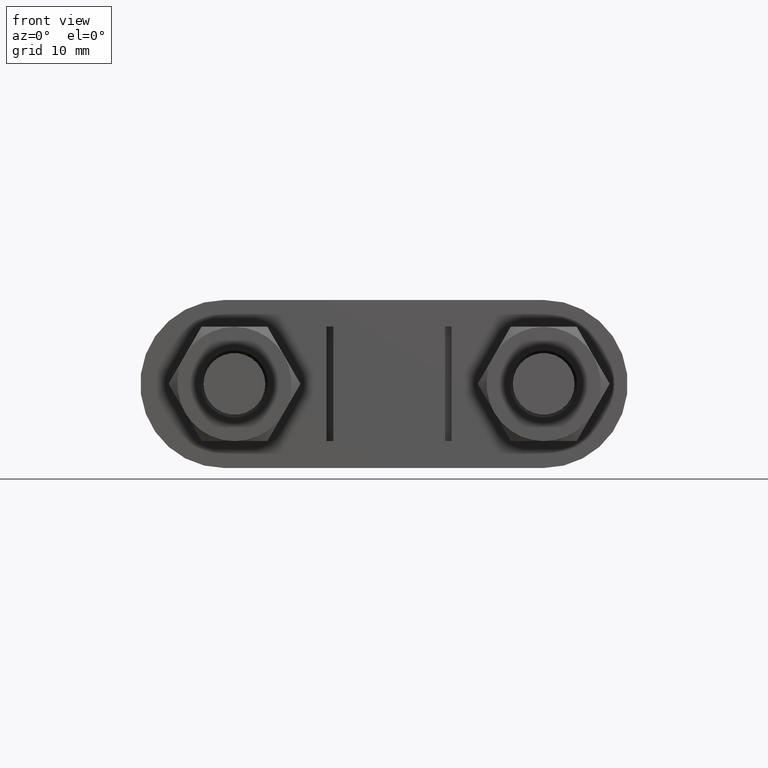
[diagram: clean part render]
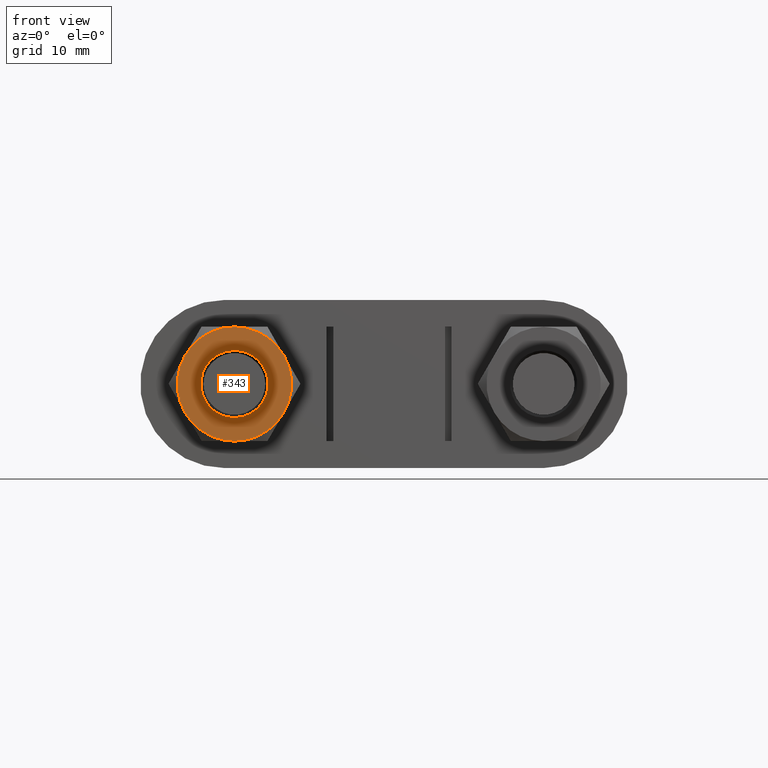
[diagram: same view with one face highlighted and labeled with its STEP entity id]
A machine part, front view. The second image highlights one B-rep face of the part: STEP entity #343.
In plain terms, the highlighted planar face has unit normal (0, 1, 0).
Its self-contained STEP definition (entity closure, byte-faithful):
#343 = ADVANCED_FACE( '', ( #554, #555 ), #556, .F. );
#554 = FACE_OUTER_BOUND( '', #1632, .T. );
#555 = FACE_BOUND( '', #1633, .T. );
#556 = PLANE( '', #1634 );
#1632 = EDGE_LOOP( '', ( #2257, #2258, #2259, #2260, #2261, #2262 ) );
#1633 = EDGE_LOOP( '', ( #2263 ) );
#1634 = AXIS2_PLACEMENT_3D( '', #2264, #2265, #2266 );
#2257 = ORIENTED_EDGE( '', *, *, #2681, .F. );
#2258 = ORIENTED_EDGE( '', *, *, #2686, .F. );
#2259 = ORIENTED_EDGE( '', *, *, #2662, .F. );
#2260 = ORIENTED_EDGE( '', *, *, #2678, .F. );
#2261 = ORIENTED_EDGE( '', *, *, #2649, .F. );
#2262 = ORIENTED_EDGE( '', *, *, #2687, .F. );
#2263 = ORIENTED_EDGE( '', *, *, #2688, .T. );
#2264 = CARTESIAN_POINT( '', ( -23.0000000000000, 18.0000000000003, 4.84692581209649E-015 ) );
#2265 = DIRECTION( '', ( 7.49830360911067E-032, 1.00000000000000, 3.06151588455594E-016 ) );
#2266 = DIRECTION( '', ( 1.00000000000000, -1.09476442525376E-047, -2.44921270764475E-016 ) );
#2649 = EDGE_CURVE( '', #2970, #2972, #2973, .T. );
#2662 = EDGE_CURVE( '', #2988, #2995, #2996, .T. );
#2678 = EDGE_CURVE( '', #2972, #2988, #3023, .T. );
#2681 = EDGE_CURVE( '', #3027, #3028, #3029, .T. );
#2686 = EDGE_CURVE( '', #2995, #3027, #3036, .T. );
#2687 = EDGE_CURVE( '', #3028, #2970, #3037, .T. );
#2688 = EDGE_CURVE( '', #3038, #3038, #3039, .T. );
#2970 = VERTEX_POINT( '', #3618 );
#2972 = VERTEX_POINT( '', #3625 );
#2973 = CIRCLE( '', #3626, 8.50000000000000 );
#2988 = VERTEX_POINT( '', #3650 );
#2995 = VERTEX_POINT( '', #3669 );
#2996 = CIRCLE( '', #3670, 8.50000000000000 );
#3023 = CIRCLE( '', #3709, 8.50000000000000 );
#3027 = VERTEX_POINT( '', #3718 );
#3028 = VERTEX_POINT( '', #3719 );
#3029 = CIRCLE( '', #3720, 8.50000000000000 );
#3036 = CIRCLE( '', #3738, 8.50000000000000 );
#3037 = CIRCLE( '', #3739, 8.50000000000000 );
#3038 = VERTEX_POINT( '', #3740 );
#3039 = CIRCLE( '', #3741, 5.00000000000000 );
#3618 = CARTESIAN_POINT( '', ( -22.9999999992900, 18.0000000000003, 8.50000000000001 ) );
#3625 = CARTESIAN_POINT( '', ( -15.6387840674773, 18.0000000000003, 4.24999999938521 ) );
#3626 = AXIS2_PLACEMENT_3D( '', #4118, #4119, #4120 );
#3650 = CARTESIAN_POINT( '', ( -15.6387840681875, 18.0000000000002, -4.25000000061489 ) );
#3669 = CARTESIAN_POINT( '', ( -23.0000000003550, 18.0000000000003, -8.50000000020496 ) );
#3670 = AXIS2_PLACEMENT_3D( '', #4136, #4137, #4138 );
#3709 = AXIS2_PLACEMENT_3D( '', #4167, #4168, #4169 );
#3718 = CARTESIAN_POINT( '', ( -30.3612159325226, 18.0000000000003, -4.24999999938518 ) );
#3719 = CARTESIAN_POINT( '', ( -30.3612159318125, 18.0000000000002, 4.25000000061490 ) );
#3720 = AXIS2_PLACEMENT_3D( '', #4173, #4174, #4175 );
#3738 = AXIS2_PLACEMENT_3D( '', #4180, #4181, #4182 );
#3739 = AXIS2_PLACEMENT_3D( '', #4183, #4184, #4185 );
#3740 = CARTESIAN_POINT( '', ( -23.0000000000000, 18.0000000000003, 5.00000000000001 ) );
#3741 = AXIS2_PLACEMENT_3D( '', #4186, #4187, #4188 );
#4118 = CARTESIAN_POINT( '', ( -23.0000000000000, 18.0000000000003, 4.84692581209649E-015 ) );
#4119 = DIRECTION( '', ( 7.49830360911067E-032, 1.00000000000000, 3.06151588455594E-016 ) );
#4120 = DIRECTION( '', ( 0.000000000000000, -3.06151588455594E-016, 1.00000000000000 ) );
#4136 = CARTESIAN_POINT( '', ( -23.0000000000000, 18.0000000000003, 4.84692581209649E-015 ) );
#4137 = DIRECTION( '', ( 7.49830360911067E-032, 1.00000000000000, 3.06151588455594E-016 ) );
#4138 = DIRECTION( '', ( 0.000000000000000, -3.06151588455594E-016, 1.00000000000000 ) );
#4167 = CARTESIAN_POINT( '', ( -23.0000000000000, 18.0000000000003, 4.84692581209649E-015 ) );
#4168 = DIRECTION( '', ( 7.49830360911067E-032, 1.00000000000000, 3.06151588455594E-016 ) );
#4169 = DIRECTION( '', ( 0.000000000000000, -3.06151588455594E-016, 1.00000000000000 ) );
#4173 = CARTESIAN_POINT( '', ( -23.0000000000000, 18.0000000000003, 4.84692581209649E-015 ) );
#4174 = DIRECTION( '', ( 7.49830360911067E-032, 1.00000000000000, 3.06151588455594E-016 ) );
#4175 = DIRECTION( '', ( 0.000000000000000, -3.06151588455594E-016, 1.00000000000000 ) );
#4180 = CARTESIAN_POINT( '', ( -23.0000000000000, 18.0000000000003, 4.84692581209649E-015 ) );
#4181 = DIRECTION( '', ( 7.49830360911067E-032, 1.00000000000000, 3.06151588455594E-016 ) );
#4182 = DIRECTION( '', ( 0.000000000000000, -3.06151588455594E-016, 1.00000000000000 ) );
#4183 = CARTESIAN_POINT( '', ( -23.0000000000000, 18.0000000000003, 4.84692581209649E-015 ) );
#4184 = DIRECTION( '', ( 7.49830360911067E-032, 1.00000000000000, 3.06151588455594E-016 ) );
#4185 = DIRECTION( '', ( 0.000000000000000, -3.06151588455594E-016, 1.00000000000000 ) );
#4186 = CARTESIAN_POINT( '', ( -23.0000000000000, 18.0000000000003, 4.84692581209649E-015 ) );
#4187 = DIRECTION( '', ( 7.49830360911067E-032, 1.00000000000000, 3.06151588455594E-016 ) );
#4188 = DIRECTION( '', ( 0.000000000000000, -3.06151588455594E-016, 1.00000000000000 ) );